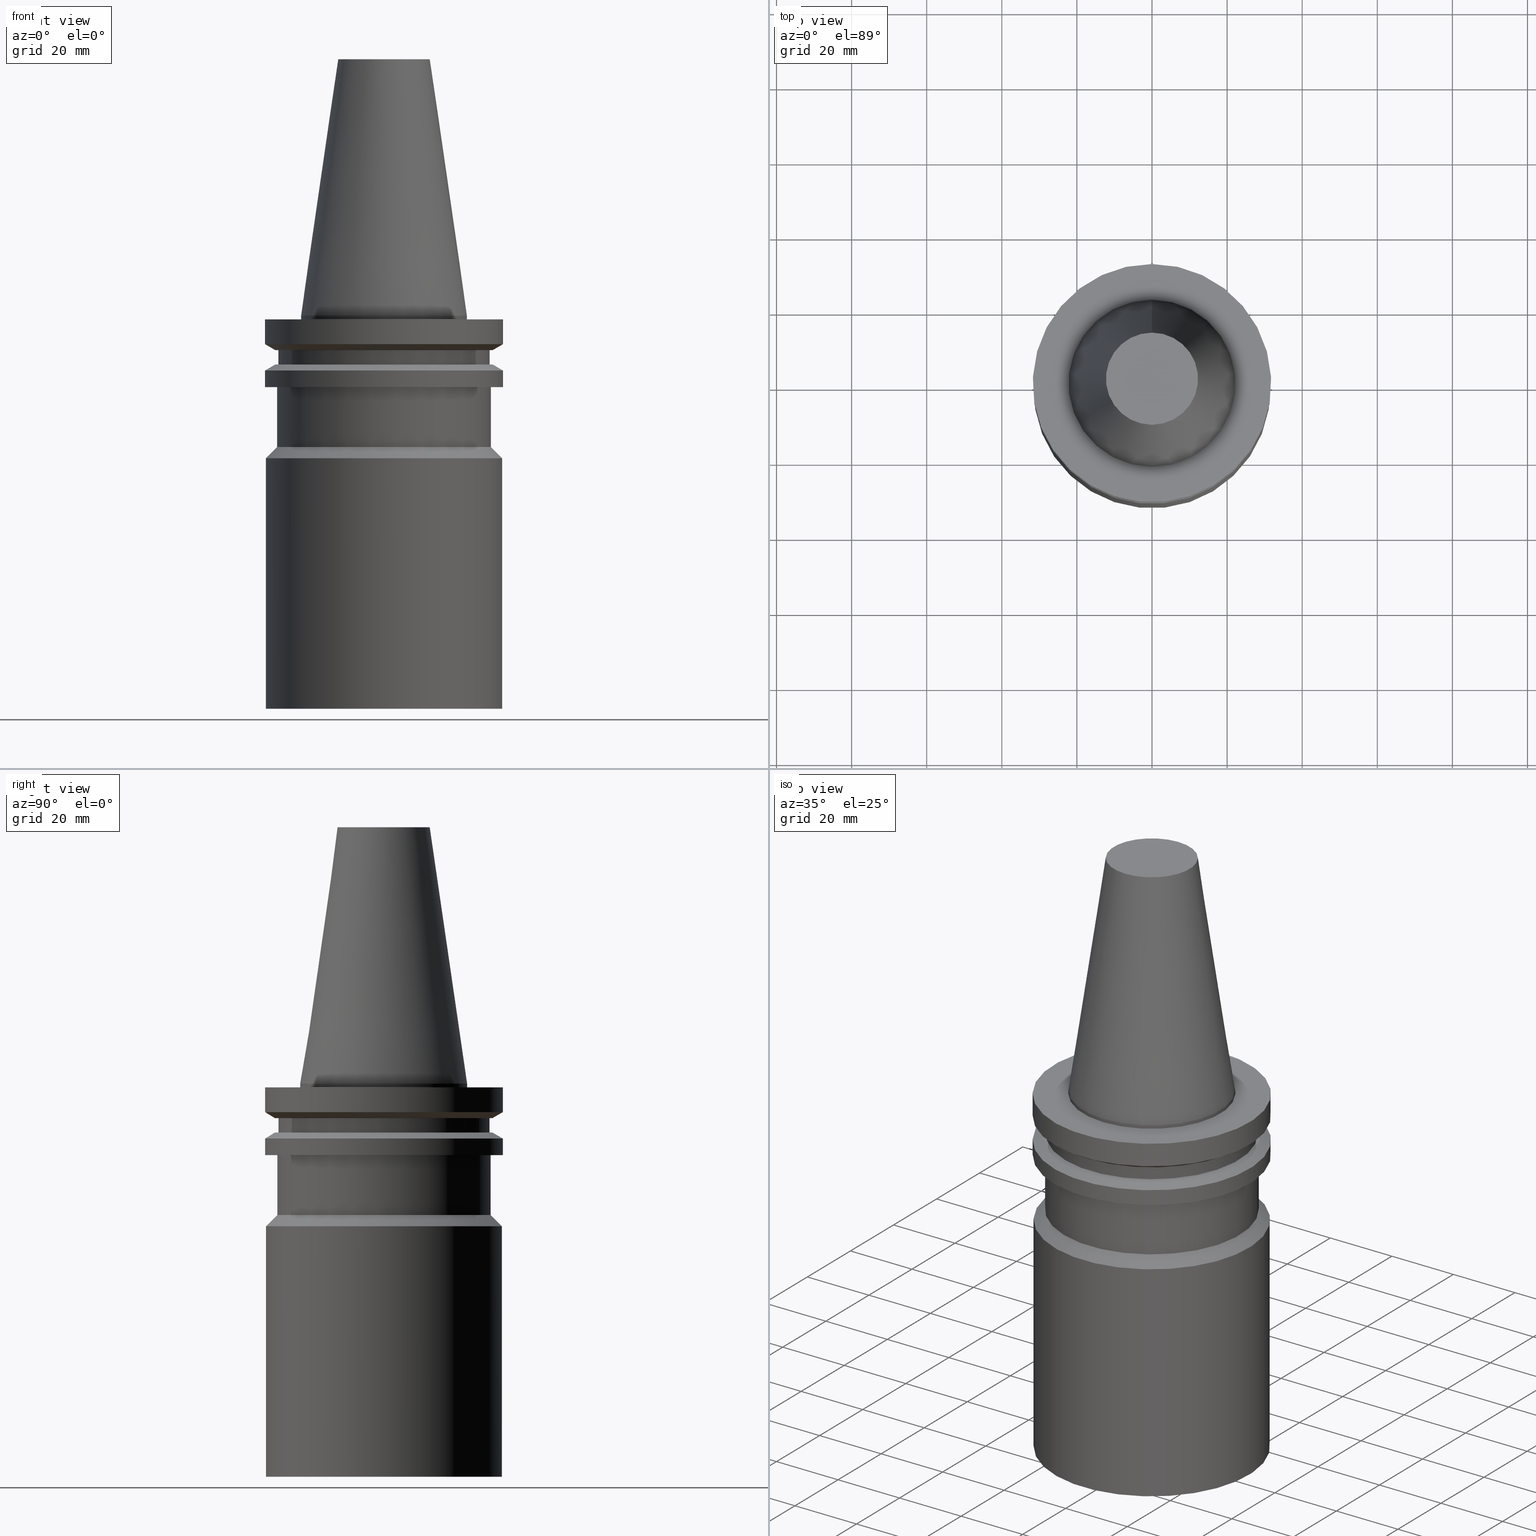
[diagram: canonical four-view strip — front | top / right | iso, engineering-drawing reading convention]
A machine part, canonical four-view strip (front | top / right | iso — engineering-drawing reading convention). The complete STEP part file that produces these views, byte-faithful:
ISO-10303-21;
HEADER;
FILE_DESCRIPTION((''),'1');
FILE_NAME('V:/01_Dxf_Field-HP\X2\FF71FF6FFF8CFF9F5916\X0\2013/BIGKAISER\X2\FF76FF80FF9BFF78FF9E63B28F095206\X0\_BKUS_201803/BCV_Y-F/BCV40Y-F63-4.125.stp','2018-03-13T05:58:49',(''),(''),'Spatial Interop R21 SP3','Kubotek KeyCreator 2011 V10.0.2 (22737)',' ');
FILE_SCHEMA(('automotive_design'));
ENDSEC;
DATA;
#1=MECHANICAL_DESIGN_GEOMETRIC_PRESENTATION_REPRESENTATION(' ',(#10,#11,#12,#13,#14,#15,#16,#17,#18,#19,#20,#21,#22,#23,#24,#25,#26,#27,#28,#29,#30,#31,#32,#33,#34,#35,#36,#37,#38,#39,#40,#41),#6);
#2=PRODUCT_DEFINITION_CONTEXT('',#42,'design');
#3=APPLICATION_PROTOCOL_DEFINITION('INTERNATIONAL STANDARD','automotive_design',1994,#42);
#4=PRODUCT_CATEGORY_RELATIONSHIP('NONE','NONE',#43,#44);
#5=SHAPE_DEFINITION_REPRESENTATION(#45,#46);
#6= (GEOMETRIC_REPRESENTATION_CONTEXT(3)GLOBAL_UNCERTAINTY_ASSIGNED_CONTEXT((#49))GLOBAL_UNIT_ASSIGNED_CONTEXT((#51,#52,#53))REPRESENTATION_CONTEXT('NONE','WORKSPACE'));
#10=STYLED_ITEM('',(#55),#56);
#11=STYLED_ITEM('',(#57),#58);
#12=STYLED_ITEM('',(#59,#60),#61);
#13=STYLED_ITEM('',(#62),#63);
#14=STYLED_ITEM('',(#64),#65);
#15=STYLED_ITEM('',(#66,#67),#68);
#16=STYLED_ITEM('',(#69),#70);
#17=STYLED_ITEM('',(#71,#72),#73);
#18=STYLED_ITEM('',(#74,#75),#76);
#19=STYLED_ITEM('',(#77),#78);
#20=STYLED_ITEM('',(#79,#80),#81);
#21=STYLED_ITEM('',(#82),#83);
#22=STYLED_ITEM('',(#84,#85),#86);
#23=STYLED_ITEM('',(#87),#88);
#24=STYLED_ITEM('',(#89),#90);
#25=STYLED_ITEM('',(#91,#92),#93);
#26=STYLED_ITEM('',(#94,#95),#96);
#27=STYLED_ITEM('',(#97,#98),#99);
#28=STYLED_ITEM('',(#100,#101),#102);
#29=STYLED_ITEM('',(#103,#104),#105);
#30=STYLED_ITEM('',(#106),#107);
#31=STYLED_ITEM('',(#108,#109),#110);
#32=STYLED_ITEM('',(#111),#112);
#33=STYLED_ITEM('',(#113,#114),#115);
#34=STYLED_ITEM('',(#116,#117),#118);
#35=STYLED_ITEM('',(#119),#120);
#36=STYLED_ITEM('',(#121),#122);
#37=STYLED_ITEM('',(#123),#124);
#38=STYLED_ITEM('',(#125,#126),#127);
#39=STYLED_ITEM('',(#128),#129);
#40=STYLED_ITEM('',(#130,#131),#132);
#41=STYLED_ITEM('',(#133,#134),#135);
#42=APPLICATION_CONTEXT(' ');
#43=PRODUCT_CATEGORY('part','NONE');
#44=PRODUCT_RELATED_PRODUCT_CATEGORY('detail',' ',(#136));
#45=PRODUCT_DEFINITION_SHAPE('NONE','NONE',#137);
#46=ADVANCED_BREP_SHAPE_REPRESENTATION('Unnamed[1]',(#93,#138),#6);
#49=UNCERTAINTY_MEASURE_WITH_UNIT(LENGTH_MEASURE(1.0E-006),#51,'','');
#51= (CONVERSION_BASED_UNIT('MILLIMETRE',#141)LENGTH_UNIT()NAMED_UNIT(#144));
#52= (NAMED_UNIT(#146)PLANE_ANGLE_UNIT()SI_UNIT($,.RADIAN.));
#53= (NAMED_UNIT(#146)SOLID_ANGLE_UNIT()SI_UNIT($,.STERADIAN.));
#55=PRESENTATION_STYLE_ASSIGNMENT((#152));
#56=EDGE_CURVE('Unnamed[1]',#153,#153,#154,.T.);
#57=PRESENTATION_STYLE_ASSIGNMENT((#155));
#58=EDGE_CURVE('Unnamed[1]',#156,#156,#157,.T.);
#59=PRESENTATION_STYLE_ASSIGNMENT((#158));
#60=PRESENTATION_STYLE_ASSIGNMENT((#159));
#61=ADVANCED_FACE('Unnamed[1]',(#160,#161),#162,.T.);
#62=PRESENTATION_STYLE_ASSIGNMENT((#163));
#63=EDGE_CURVE('Unnamed[1]',#164,#164,#165,.T.);
#64=PRESENTATION_STYLE_ASSIGNMENT((#166));
#65=EDGE_CURVE('Unnamed[1]',#167,#167,#168,.T.);
#66=PRESENTATION_STYLE_ASSIGNMENT((#169));
#67=PRESENTATION_STYLE_ASSIGNMENT((#170));
#68=ADVANCED_FACE('Unnamed[1]',(#171),#172,.T.);
#69=PRESENTATION_STYLE_ASSIGNMENT((#173));
#70=EDGE_CURVE('Unnamed[1]',#174,#174,#175,.T.);
#71=PRESENTATION_STYLE_ASSIGNMENT((#176));
#72=PRESENTATION_STYLE_ASSIGNMENT((#177));
#73=ADVANCED_FACE('Unnamed[1]',(#178,#179),#180,.T.);
#74=PRESENTATION_STYLE_ASSIGNMENT((#181));
#75=PRESENTATION_STYLE_ASSIGNMENT((#182));
#76=ADVANCED_FACE('Unnamed[1]',(#183,#184),#185,.T.);
#77=PRESENTATION_STYLE_ASSIGNMENT((#186));
#78=EDGE_CURVE('Unnamed[1]',#187,#187,#188,.T.);
#79=PRESENTATION_STYLE_ASSIGNMENT((#189));
#80=PRESENTATION_STYLE_ASSIGNMENT((#190));
#81=ADVANCED_FACE('Unnamed[1]',(#191,#192),#193,.T.);
#82=PRESENTATION_STYLE_ASSIGNMENT((#194));
#83=EDGE_CURVE('Unnamed[1]',#195,#195,#196,.T.);
#84=PRESENTATION_STYLE_ASSIGNMENT((#197));
#85=PRESENTATION_STYLE_ASSIGNMENT((#198));
#86=ADVANCED_FACE('Unnamed[1]',(#199,#200),#201,.T.);
#87=PRESENTATION_STYLE_ASSIGNMENT((#202));
#88=EDGE_CURVE('Unnamed[1]',#203,#203,#204,.T.);
#89=PRESENTATION_STYLE_ASSIGNMENT((#205));
#90=EDGE_CURVE('Unnamed[1]',#206,#206,#207,.T.);
#91=PRESENTATION_STYLE_ASSIGNMENT((#208));
#92=PRESENTATION_STYLE_ASSIGNMENT((#209));
#93=MANIFOLD_SOLID_BREP('Unnamed[1]',#210);
#94=PRESENTATION_STYLE_ASSIGNMENT((#211));
#95=PRESENTATION_STYLE_ASSIGNMENT((#212));
#96=ADVANCED_FACE('Unnamed[1]',(#213,#214),#215,.T.);
#97=PRESENTATION_STYLE_ASSIGNMENT((#216));
#98=PRESENTATION_STYLE_ASSIGNMENT((#217));
#99=ADVANCED_FACE('Unnamed[1]',(#218,#219),#220,.T.);
#100=PRESENTATION_STYLE_ASSIGNMENT((#221));
#101=PRESENTATION_STYLE_ASSIGNMENT((#222));
#102=ADVANCED_FACE('Unnamed[1]',(#223,#224),#225,.T.);
#103=PRESENTATION_STYLE_ASSIGNMENT((#226));
#104=PRESENTATION_STYLE_ASSIGNMENT((#227));
#105=ADVANCED_FACE('Unnamed[1]',(#228,#229),#230,.T.);
#106=PRESENTATION_STYLE_ASSIGNMENT((#231));
#107=EDGE_CURVE('Unnamed[1]',#232,#232,#233,.T.);
#108=PRESENTATION_STYLE_ASSIGNMENT((#234));
#109=PRESENTATION_STYLE_ASSIGNMENT((#235));
#110=ADVANCED_FACE('Unnamed[1]',(#236,#237),#238,.T.);
#111=PRESENTATION_STYLE_ASSIGNMENT((#239));
#112=EDGE_CURVE('Unnamed[1]',#240,#240,#241,.T.);
#113=PRESENTATION_STYLE_ASSIGNMENT((#242));
#114=PRESENTATION_STYLE_ASSIGNMENT((#243));
#115=ADVANCED_FACE('Unnamed[1]',(#244),#245,.T.);
#116=PRESENTATION_STYLE_ASSIGNMENT((#246));
#117=PRESENTATION_STYLE_ASSIGNMENT((#247));
#118=ADVANCED_FACE('Unnamed[1]',(#248,#249),#250,.T.);
#119=PRESENTATION_STYLE_ASSIGNMENT((#251));
#120=EDGE_CURVE('Unnamed[1]',#252,#252,#253,.T.);
#121=PRESENTATION_STYLE_ASSIGNMENT((#254));
#122=EDGE_CURVE('Unnamed[1]',#255,#255,#256,.T.);
#123=PRESENTATION_STYLE_ASSIGNMENT((#257));
#124=EDGE_CURVE('Unnamed[1]',#258,#258,#259,.T.);
#125=PRESENTATION_STYLE_ASSIGNMENT((#260));
#126=PRESENTATION_STYLE_ASSIGNMENT((#261));
#127=ADVANCED_FACE('Unnamed[1]',(#262,#263),#264,.T.);
#128=PRESENTATION_STYLE_ASSIGNMENT((#265));
#129=EDGE_CURVE('Unnamed[1]',#266,#266,#267,.T.);
#130=PRESENTATION_STYLE_ASSIGNMENT((#268));
#131=PRESENTATION_STYLE_ASSIGNMENT((#269));
#132=ADVANCED_FACE('Unnamed[1]',(#270,#271),#272,.T.);
#133=PRESENTATION_STYLE_ASSIGNMENT((#273));
#134=PRESENTATION_STYLE_ASSIGNMENT((#274));
#135=ADVANCED_FACE('Unnamed[1]',(#275,#276),#277,.T.);
#136=PRODUCT('Unnamed[1]','Unnamed[1]','PART-Unnamed[1]-DESC',(#278));
#137=PRODUCT_DEFINITION('NONE','NONE',#279,#2);
#138=AXIS2_PLACEMENT_3D('',#280,#281,#282);
#141=LENGTH_MEASURE_WITH_UNIT(LENGTH_MEASURE(1.0),#283);
#144=DIMENSIONAL_EXPONENTS(1.0,0.0,0.0,0.0,0.0,0.0,0.0);
#146=DIMENSIONAL_EXPONENTS(0.0,0.0,0.0,0.0,0.0,0.0,0.0);
#152=CURVE_STYLE('',#284,POSITIVE_LENGTH_MEASURE(1000.0),#285);
#153=VERTEX_POINT('',#286);
#154=CIRCLE('',#287,31.4999999999999);
#155=CURVE_STYLE('',#288,POSITIVE_LENGTH_MEASURE(1000.0),#289);
#156=VERTEX_POINT('',#290);
#157=CIRCLE('',#291,31.5000000000001);
#158=SURFACE_STYLE_USAGE(.BOTH.,#292);
#159=CURVE_STYLE('',#293,POSITIVE_LENGTH_MEASURE(1000.0),#294);
#160=FACE_BOUND('',#295,.T.);
#161=FACE_BOUND('',#296,.T.);
#162=CYLINDRICAL_SURFACE('',#297,31.75);
#163=CURVE_STYLE('',#298,POSITIVE_LENGTH_MEASURE(1000.0),#299);
#164=VERTEX_POINT('',#300);
#165=CIRCLE('',#301,12.2718750014768);
#166=CURVE_STYLE('',#302,POSITIVE_LENGTH_MEASURE(1000.0),#303);
#167=VERTEX_POINT('',#304);
#168=CIRCLE('',#305,28.5000000000002);
#169=SURFACE_STYLE_USAGE(.BOTH.,#306);
#170=CURVE_STYLE('',#307,POSITIVE_LENGTH_MEASURE(1000.0),#308);
#171=FACE_OUTER_BOUND('',#309,.T.);
#172=PLANE('',#310);
#173=CURVE_STYLE('',#311,POSITIVE_LENGTH_MEASURE(1000.0),#312);
#174=VERTEX_POINT('',#313);
#175=CIRCLE('',#314,28.18);
#176=SURFACE_STYLE_USAGE(.BOTH.,#315);
#177=CURVE_STYLE('',#316,POSITIVE_LENGTH_MEASURE(1000.0),#317);
#178=FACE_BOUND('',#318,.T.);
#179=FACE_OUTER_BOUND('',#319,.T.);
#180=PLANE('',#320);
#181=SURFACE_STYLE_USAGE(.BOTH.,#321);
#182=CURVE_STYLE('',#322,POSITIVE_LENGTH_MEASURE(1000.0),#323);
#183=FACE_BOUND('',#324,.T.);
#184=FACE_BOUND('',#325,.T.);
#185=CYLINDRICAL_SURFACE('',#326,22.225);
#186=CURVE_STYLE('',#327,POSITIVE_LENGTH_MEASURE(1000.0),#328);
#187=VERTEX_POINT('',#329);
#188=CIRCLE('',#330,28.9680375505324);
#189=SURFACE_STYLE_USAGE(.BOTH.,#331);
#190=CURVE_STYLE('',#332,POSITIVE_LENGTH_MEASURE(1000.0),#333);
#191=FACE_BOUND('',#334,.T.);
#192=FACE_BOUND('',#335,.T.);
#193=CONICAL_SURFACE('',#336,30.3590187752662,1.0471975511966);
#194=CURVE_STYLE('',#337,POSITIVE_LENGTH_MEASURE(1000.0),#338);
#195=VERTEX_POINT('',#339);
#196=CIRCLE('',#340,31.75);
#197=SURFACE_STYLE_USAGE(.BOTH.,#341);
#198=CURVE_STYLE('',#342,POSITIVE_LENGTH_MEASURE(1000.0),#343);
#199=FACE_BOUND('',#344,.T.);
#200=FACE_BOUND('',#345,.T.);
#201=CYLINDRICAL_SURFACE('',#346,28.5000000000003);
#202=CURVE_STYLE('',#347,POSITIVE_LENGTH_MEASURE(1000.0),#348);
#203=VERTEX_POINT('',#349);
#204=CIRCLE('',#350,31.75);
#205=CURVE_STYLE('',#351,POSITIVE_LENGTH_MEASURE(1000.0),#352);
#206=VERTEX_POINT('',#353);
#207=CIRCLE('',#354,22.225);
#208=SURFACE_STYLE_USAGE(.BOTH.,#355);
#209=CURVE_STYLE('',#356,POSITIVE_LENGTH_MEASURE(1000.0),#357);
#210=CLOSED_SHELL('',(#68,#132,#76,#110,#102,#99,#73,#118,#96,#81,#61,#127,#86,#135,#105,#115));
#211=SURFACE_STYLE_USAGE(.BOTH.,#358);
#212=CURVE_STYLE('',#359,POSITIVE_LENGTH_MEASURE(1000.0),#360);
#213=FACE_OUTER_BOUND('',#361,.T.);
#214=FACE_BOUND('',#362,.T.);
#215=PLANE('',#363);
#216=SURFACE_STYLE_USAGE(.BOTH.,#364);
#217=CURVE_STYLE('',#365,POSITIVE_LENGTH_MEASURE(1000.0),#366);
#218=FACE_BOUND('',#367,.T.);
#219=FACE_BOUND('',#368,.T.);
#220=CONICAL_SURFACE('',#369,30.3590187752662,1.0471975511966);
#221=SURFACE_STYLE_USAGE(.BOTH.,#370);
#222=CURVE_STYLE('',#371,POSITIVE_LENGTH_MEASURE(1000.0),#372);
#223=FACE_BOUND('',#373,.T.);
#224=FACE_BOUND('',#374,.T.);
#225=CYLINDRICAL_SURFACE('',#375,31.75);
#226=SURFACE_STYLE_USAGE(.BOTH.,#376);
#227=CURVE_STYLE('',#377,POSITIVE_LENGTH_MEASURE(1000.0),#378);
#228=FACE_BOUND('',#379,.T.);
#229=FACE_BOUND('',#380,.T.);
#230=CYLINDRICAL_SURFACE('',#381,31.5);
#231=CURVE_STYLE('',#382,POSITIVE_LENGTH_MEASURE(1000.0),#383);
#232=VERTEX_POINT('',#384);
#233=CIRCLE('',#385,22.225);
#234=SURFACE_STYLE_USAGE(.BOTH.,#386);
#235=CURVE_STYLE('',#387,POSITIVE_LENGTH_MEASURE(1000.0),#388);
#236=FACE_OUTER_BOUND('',#389,.T.);
#237=FACE_BOUND('',#390,.T.);
#238=PLANE('',#391);
#239=CURVE_STYLE('',#392,POSITIVE_LENGTH_MEASURE(1000.0),#393);
#240=VERTEX_POINT('',#394);
#241=CIRCLE('',#395,31.75);
#242=SURFACE_STYLE_USAGE(.BOTH.,#396);
#243=CURVE_STYLE('',#397,POSITIVE_LENGTH_MEASURE(1000.0),#398);
#244=FACE_OUTER_BOUND('',#399,.T.);
#245=PLANE('',#400);
#246=SURFACE_STYLE_USAGE(.BOTH.,#401);
#247=CURVE_STYLE('',#402,POSITIVE_LENGTH_MEASURE(1000.0),#403);
#248=FACE_BOUND('',#404,.T.);
#249=FACE_BOUND('',#405,.T.);
#250=CYLINDRICAL_SURFACE('',#406,28.18);
#251=CURVE_STYLE('',#407,POSITIVE_LENGTH_MEASURE(1000.0),#408);
#252=VERTEX_POINT('',#409);
#253=CIRCLE('',#410,28.9680375505323);
#254=CURVE_STYLE('',#411,POSITIVE_LENGTH_MEASURE(1000.0),#412);
#255=VERTEX_POINT('',#413);
#256=CIRCLE('',#414,28.18);
#257=CURVE_STYLE('',#415,POSITIVE_LENGTH_MEASURE(1000.0),#416);
#258=VERTEX_POINT('',#417);
#259=CIRCLE('',#418,28.5000000000003);
#260=SURFACE_STYLE_USAGE(.BOTH.,#419);
#261=CURVE_STYLE('',#420,POSITIVE_LENGTH_MEASURE(1000.0),#421);
#262=FACE_BOUND('',#422,.T.);
#263=FACE_OUTER_BOUND('',#423,.T.);
#264=PLANE('',#424);
#265=CURVE_STYLE('',#425,POSITIVE_LENGTH_MEASURE(1000.0),#426);
#266=VERTEX_POINT('',#427);
#267=CIRCLE('',#428,31.75);
#268=SURFACE_STYLE_USAGE(.BOTH.,#429);
#269=CURVE_STYLE('',#430,POSITIVE_LENGTH_MEASURE(1000.0),#431);
#270=FACE_BOUND('',#432,.T.);
#271=FACE_BOUND('',#433,.T.);
#272=CONICAL_SURFACE('',#434,17.2484375007384,0.144812498217751);
#273=SURFACE_STYLE_USAGE(.BOTH.,#435);
#274=CURVE_STYLE('',#436,POSITIVE_LENGTH_MEASURE(1000.0),#437);
#275=FACE_BOUND('',#438,.T.);
#276=FACE_BOUND('',#439,.T.);
#277=CONICAL_SURFACE('',#440,30.0000000000002,0.785398163397459);
#278=PRODUCT_CONTEXT('',#42,'mechanical');
#279=PRODUCT_DEFINITION_FORMATION_WITH_SPECIFIED_SOURCE(' ','NONE',#136,.NOT_KNOWN.);
#280=CARTESIAN_POINT('',(0.0,0.0,0.0));
#281=DIRECTION('',(0.0,0.0,1.0));
#282=DIRECTION('',(1.0,0.0,0.0));
#283= (NAMED_UNIT(#144)LENGTH_UNIT()SI_UNIT(.MILLI.,.METRE.));
#284=DRAUGHTING_PRE_DEFINED_CURVE_FONT('continuous');
#285=COLOUR_RGB('',0.0,1.0,0.0);
#286=CARTESIAN_POINT('',(6.4110259935363E-015,31.4999999999999,-104.699999999999));
#287=AXIS2_PLACEMENT_3D('',#442,#443,#444);
#288=DRAUGHTING_PRE_DEFINED_CURVE_FONT('continuous');
#289=COLOUR_RGB('',0.0,1.0,0.0);
#290=CARTESIAN_POINT('',(2.32682891837998E-015,31.5000000000001,-38.0000000000001));
#291=AXIS2_PLACEMENT_3D('',#445,#446,#447);
#292=SURFACE_SIDE_STYLE('',(#448));
#293=DRAUGHTING_PRE_DEFINED_CURVE_FONT('continuous');
#294=COLOUR_RGB('',0.0,1.0,0.0);
#295=EDGE_LOOP('',(#449));
#296=EDGE_LOOP('',(#450));
#297=AXIS2_PLACEMENT_3D('',#451,#452,#453);
#298=DRAUGHTING_PRE_DEFINED_CURVE_FONT('continuous');
#299=COLOUR_RGB('',0.0,1.0,0.0);
#300=CARTESIAN_POINT('',(-4.17910720209034E-015,12.2718750014768,68.25));
#301=AXIS2_PLACEMENT_3D('',#454,#455,#456);
#302=DRAUGHTING_PRE_DEFINED_CURVE_FONT('continuous');
#303=COLOUR_RGB('',0.0,1.0,0.0);
#304=CARTESIAN_POINT('',(1.16647607618786E-015,28.5000000000002,-19.0500000000001));
#305=AXIS2_PLACEMENT_3D('',#457,#458,#459);
#306=SURFACE_SIDE_STYLE('',(#460));
#307=DRAUGHTING_PRE_DEFINED_CURVE_FONT('continuous');
#308=COLOUR_RGB('',0.0,1.0,0.0);
#309=EDGE_LOOP('',(#461));
#310=AXIS2_PLACEMENT_3D('',#462,#463,#464);
#311=DRAUGHTING_PRE_DEFINED_CURVE_FONT('continuous');
#312=COLOUR_RGB('',0.0,1.0,0.0);
#313=CARTESIAN_POINT('',(5.63337527607784E-016,28.18,-9.20000000000002));
#314=AXIS2_PLACEMENT_3D('',#465,#466,#467);
#315=SURFACE_SIDE_STYLE('',(#468));
#316=DRAUGHTING_PRE_DEFINED_CURVE_FONT('continuous');
#317=COLOUR_RGB('',0.0,1.0,0.0);
#318=EDGE_LOOP('',(#469));
#319=EDGE_LOOP('',(#470));
#320=AXIS2_PLACEMENT_3D('',#471,#472,#473);
#321=SURFACE_SIDE_STYLE('',(#474));
#322=DRAUGHTING_PRE_DEFINED_CURVE_FONT('continuous');
#323=COLOUR_RGB('',0.0,1.0,0.0);
#324=EDGE_LOOP('',(#475));
#325=EDGE_LOOP('',(#476));
#326=AXIS2_PLACEMENT_3D('',#477,#478,#479);
#327=DRAUGHTING_PRE_DEFINED_CURVE_FONT('continuous');
#328=COLOUR_RGB('',0.0,1.0,0.0);
#329=CARTESIAN_POINT('',(7.98469713044073E-016,28.9680375505324,-13.04));
#330=AXIS2_PLACEMENT_3D('',#480,#481,#482);
#331=SURFACE_SIDE_STYLE('',(#483));
#332=DRAUGHTING_PRE_DEFINED_CURVE_FONT('continuous');
#333=COLOUR_RGB('',0.0,1.0,0.0);
#334=EDGE_LOOP('',(#484));
#335=EDGE_LOOP('',(#485));
#336=AXIS2_PLACEMENT_3D('',#486,#487,#488);
#337=DRAUGHTING_PRE_DEFINED_CURVE_FONT('continuous');
#338=COLOUR_RGB('',0.0,1.0,0.0);
#339=CARTESIAN_POINT('',(6.12323399573673E-017,31.75,-0.999999999999996));
#340=AXIS2_PLACEMENT_3D('',#489,#490,#491);
#341=SURFACE_SIDE_STYLE('',(#492));
#342=DRAUGHTING_PRE_DEFINED_CURVE_FONT('continuous');
#343=COLOUR_RGB('',0.0,1.0,0.0);
#344=EDGE_LOOP('',(#493));
#345=EDGE_LOOP('',(#494));
#346=AXIS2_PLACEMENT_3D('',#495,#496,#497);
#347=DRAUGHTING_PRE_DEFINED_CURVE_FONT('continuous');
#348=COLOUR_RGB('',0.0,1.0,0.0);
#349=CARTESIAN_POINT('',(1.16647607618786E-015,31.75,-19.05));
#350=AXIS2_PLACEMENT_3D('',#498,#499,#500);
#351=DRAUGHTING_PRE_DEFINED_CURVE_FONT('continuous');
#352=COLOUR_RGB('',0.0,1.0,0.0);
#353=CARTESIAN_POINT('',(6.12323399573674E-017,22.225,-0.999999999999997));
#354=AXIS2_PLACEMENT_3D('',#501,#502,#503);
#355=SURFACE_SIDE_STYLE('',(#504));
#356=DRAUGHTING_PRE_DEFINED_CURVE_FONT('continuous');
#357=COLOUR_RGB('',0.0,1.0,0.0);
#358=SURFACE_SIDE_STYLE('',(#505));
#359=DRAUGHTING_PRE_DEFINED_CURVE_FONT('continuous');
#360=COLOUR_RGB('',0.0,1.0,0.0);
#361=EDGE_LOOP('',(#506));
#362=EDGE_LOOP('',(#507));
#363=AXIS2_PLACEMENT_3D('',#508,#509,#510);
#364=SURFACE_SIDE_STYLE('',(#511));
#365=DRAUGHTING_PRE_DEFINED_CURVE_FONT('continuous');
#366=COLOUR_RGB('',0.0,1.0,0.0);
#367=EDGE_LOOP('',(#512));
#368=EDGE_LOOP('',(#513));
#369=AXIS2_PLACEMENT_3D('',#514,#515,#516);
#370=SURFACE_SIDE_STYLE('',(#517));
#371=DRAUGHTING_PRE_DEFINED_CURVE_FONT('continuous');
#372=COLOUR_RGB('',0.0,1.0,0.0);
#373=EDGE_LOOP('',(#518));
#374=EDGE_LOOP('',(#519));
#375=AXIS2_PLACEMENT_3D('',#520,#521,#522);
#376=SURFACE_SIDE_STYLE('',(#523));
#377=DRAUGHTING_PRE_DEFINED_CURVE_FONT('continuous');
#378=COLOUR_RGB('',0.0,1.0,0.0);
#379=EDGE_LOOP('',(#524));
#380=EDGE_LOOP('',(#525));
#381=AXIS2_PLACEMENT_3D('',#526,#527,#528);
#382=DRAUGHTING_PRE_DEFINED_CURVE_FONT('continuous');
#383=COLOUR_RGB('',0.0,1.0,0.0);
#384=CARTESIAN_POINT('',(-2.7394427528964E-031,22.225,2.72177751110499E-015));
#385=AXIS2_PLACEMENT_3D('',#529,#530,#531);
#386=SURFACE_SIDE_STYLE('',(#532));
#387=DRAUGHTING_PRE_DEFINED_CURVE_FONT('continuous');
#388=COLOUR_RGB('',0.0,1.0,0.0);
#389=EDGE_LOOP('',(#533));
#390=EDGE_LOOP('',(#534));
#391=AXIS2_PLACEMENT_3D('',#535,#536,#537);
#392=DRAUGHTING_PRE_DEFINED_CURVE_FONT('continuous');
#393=COLOUR_RGB('',0.0,1.0,0.0);
#394=CARTESIAN_POINT('',(8.96819062676333E-016,31.75,-14.6461667690755));
#395=AXIS2_PLACEMENT_3D('',#538,#539,#540);
#396=SURFACE_SIDE_STYLE('',(#541));
#397=DRAUGHTING_PRE_DEFINED_CURVE_FONT('continuous');
#398=COLOUR_RGB('',0.0,1.0,0.0);
#399=EDGE_LOOP('',(#542));
#400=AXIS2_PLACEMENT_3D('',#543,#544,#545);
#401=SURFACE_SIDE_STYLE('',(#546));
#402=DRAUGHTING_PRE_DEFINED_CURVE_FONT('continuous');
#403=COLOUR_RGB('',0.0,1.0,0.0);
#404=EDGE_LOOP('',(#547));
#405=EDGE_LOOP('',(#548));
#406=AXIS2_PLACEMENT_3D('',#549,#550,#551);
#407=DRAUGHTING_PRE_DEFINED_CURVE_FONT('continuous');
#408=COLOUR_RGB('',0.0,1.0,0.0);
#409=CARTESIAN_POINT('',(5.63337527607784E-016,28.9680375505323,-9.20000000000002));
#410=AXIS2_PLACEMENT_3D('',#552,#553,#554);
#411=DRAUGHTING_PRE_DEFINED_CURVE_FONT('continuous');
#412=COLOUR_RGB('',0.0,1.0,0.0);
#413=CARTESIAN_POINT('',(7.98469713044073E-016,28.18,-13.04));
#414=AXIS2_PLACEMENT_3D('',#555,#556,#557);
#415=DRAUGHTING_PRE_DEFINED_CURVE_FONT('continuous');
#416=COLOUR_RGB('',0.0,1.0,0.0);
#417=CARTESIAN_POINT('',(2.14313189850789E-015,28.5000000000003,-35.0000000000003));
#418=AXIS2_PLACEMENT_3D('',#558,#559,#560);
#419=SURFACE_SIDE_STYLE('',(#561));
#420=DRAUGHTING_PRE_DEFINED_CURVE_FONT('continuous');
#421=COLOUR_RGB('',0.0,1.0,0.0);
#422=EDGE_LOOP('',(#562));
#423=EDGE_LOOP('',(#563));
#424=AXIS2_PLACEMENT_3D('',#564,#565,#566);
#425=DRAUGHTING_PRE_DEFINED_CURVE_FONT('continuous');
#426=COLOUR_RGB('',0.0,1.0,0.0);
#427=CARTESIAN_POINT('',(4.64988177975518E-016,31.75,-7.59383323092439));
#428=AXIS2_PLACEMENT_3D('',#567,#568,#569);
#429=SURFACE_SIDE_STYLE('',(#570));
#430=DRAUGHTING_PRE_DEFINED_CURVE_FONT('continuous');
#431=COLOUR_RGB('',0.0,1.0,0.0);
#432=EDGE_LOOP('',(#571));
#433=EDGE_LOOP('',(#572));
#434=AXIS2_PLACEMENT_3D('',#573,#574,#575);
#435=SURFACE_SIDE_STYLE('',(#576));
#436=DRAUGHTING_PRE_DEFINED_CURVE_FONT('continuous');
#437=COLOUR_RGB('',0.0,1.0,0.0);
#438=EDGE_LOOP('',(#577));
#439=EDGE_LOOP('',(#578));
#440=AXIS2_PLACEMENT_3D('',#579,#580,#581);
#442=CARTESIAN_POINT('',(6.4110259935363E-015,-2.97759586601671E-014,-104.699999999998));
#443=DIRECTION('',(6.12323399573676E-017,-1.22421842920773E-016,-1.0));
#444=DIRECTION('',(2.66902317316447E-033,1.0,-1.22421842920773E-016));
#445=CARTESIAN_POINT('',(2.32682891837998E-015,-2.16104217373504E-014,-38.0000000000001));
#446=DIRECTION('',(6.12323399573677E-017,-1.22421842920772E-016,-1.0));
#447=DIRECTION('',(2.6690231731616E-033,1.0,-1.22421842920772E-016));
#448=SURFACE_STYLE_FILL_AREA(#582);
#449=ORIENTED_EDGE('',*,*,#88,.F.);
#450=ORIENTED_EDGE('',*,*,#112,.T.);
#451=CARTESIAN_POINT('',(1.03164756943209E-015,-1.90209651239786E-014,-16.8480833845378));
#452=DIRECTION('',(6.12323399573677E-017,-1.22421842920806E-016,-1.0));
#453=DIRECTION('',(2.66902317316385E-033,1.0,-1.22421842920806E-016));
#454=CARTESIAN_POINT('',(-4.17910720209034E-015,-8.60310092701621E-015,68.25));
#455=DIRECTION('',(6.12323399573677E-017,-1.22421842920813E-016,-1.0));
#456=DIRECTION('',(2.66902317316486E-033,1.0,-1.22421842920813E-016));
#457=CARTESIAN_POINT('',(1.16647607618786E-015,-1.92905278140014E-014,-19.0500000000001));
#458=DIRECTION('',(6.12323399573677E-017,-1.22421842920777E-016,-1.0));
#459=DIRECTION('',(2.66902317316309E-033,1.0,-1.22421842920777E-016));
#460=SURFACE_STYLE_FILL_AREA(#583);
#461=ORIENTED_EDGE('',*,*,#63,.F.);
#462=CARTESIAN_POINT('',(-4.17910720209034E-015,6.13593750073841,68.25));
#463=DIRECTION('',(-6.12323399573677E-017,1.03553723205811E-015,1.0));
#464=DIRECTION('',(-5.8581215101125E-032,-1.0,1.03553723205811E-015));
#465=CARTESIAN_POINT('',(5.63337527607784E-016,-1.80846726612316E-014,-9.20000000000003));
#466=DIRECTION('',(6.12323399573676E-017,-1.2242184292081E-016,-1.0));
#467=DIRECTION('',(2.6690231731669E-033,1.0,-1.2242184292081E-016));
#468=SURFACE_STYLE_FILL_AREA(#584);
#469=ORIENTED_EDGE('',*,*,#70,.F.);
#470=ORIENTED_EDGE('',*,*,#120,.T.);
#471=CARTESIAN_POINT('',(5.63337527607784E-016,28.5740187752661,-9.20000000000002));
#472=DIRECTION('',(6.12323399573677E-017,1.22464679914735E-016,-1.0));
#473=DIRECTION('',(-1.23259516440783E-032,1.0,1.22464679914735E-016));
#474=SURFACE_STYLE_FILL_AREA(#585);
#475=ORIENTED_EDGE('',*,*,#90,.F.);
#476=ORIENTED_EDGE('',*,*,#107,.T.);
#477=CARTESIAN_POINT('',(3.06161699786838E-017,-1.70196026278207E-014,-0.5));
#478=DIRECTION('',(6.12323399573676E-017,-1.22421842920814E-016,-1.0));
#479=DIRECTION('',(2.6690231731699E-033,1.0,-1.22421842920814E-016));
#480=CARTESIAN_POINT('',(7.98469713044074E-016,-1.85547725380474E-014,-13.04));
#481=DIRECTION('',(6.12323399573677E-017,-1.22421842920798E-016,-1.0));
#482=DIRECTION('',(2.66902317316161E-033,1.0,-1.22421842920798E-016));
#483=SURFACE_STYLE_FILL_AREA(#586);
#484=ORIENTED_EDGE('',*,*,#112,.F.);
#485=ORIENTED_EDGE('',*,*,#78,.T.);
#486=CARTESIAN_POINT('',(8.47644387860202E-016,-1.86530874860016E-014,-13.8430833845377));
#487=DIRECTION('',(6.12323399573677E-017,-1.22421842920776E-016,-1.0));
#488=DIRECTION('',(2.66902317316278E-033,1.0,-1.22421842920776E-016));
#489=CARTESIAN_POINT('',(6.12323399573668E-017,-1.70808135492811E-014,-0.999999999999986));
#490=DIRECTION('',(6.12323399573677E-017,-1.22421842920806E-016,-1.0));
#491=DIRECTION('',(2.66902317316385E-033,1.0,-1.22421842920806E-016));
#492=SURFACE_STYLE_FILL_AREA(#587);
#493=ORIENTED_EDGE('',*,*,#124,.F.);
#494=ORIENTED_EDGE('',*,*,#65,.T.);
#495=CARTESIAN_POINT('',(1.65480398734787E-015,-2.02668420112948E-014,-27.0250000000002));
#496=DIRECTION('',(6.12323399573677E-017,-1.22421842920777E-016,-1.0));
#497=DIRECTION('',(2.66902317316309E-033,1.0,-1.22421842920777E-016));
#498=CARTESIAN_POINT('',(1.16647607618785E-015,-1.92905278140014E-014,-19.05));
#499=DIRECTION('',(6.12323399573677E-017,-1.22421842920806E-016,-1.0));
#500=DIRECTION('',(2.66902317316385E-033,1.0,-1.22421842920806E-016));
#501=CARTESIAN_POINT('',(6.12323399573677E-017,-1.70808135492811E-014,-1.0));
#502=DIRECTION('',(6.12323399573676E-017,-1.22421842920814E-016,-1.0));
#503=DIRECTION('',(2.6690231731699E-033,1.0,-1.22421842920814E-016));
#504=SURFACE_STYLE_FILL_AREA(#588);
#505=SURFACE_STYLE_FILL_AREA(#589);
#506=ORIENTED_EDGE('',*,*,#78,.F.);
#507=ORIENTED_EDGE('',*,*,#122,.T.);
#508=CARTESIAN_POINT('',(7.98469713044073E-016,28.5740187752662,-13.04));
#509=DIRECTION('',(-6.12323399573677E-017,-1.22464679914735E-016,1.0));
#510=DIRECTION('',(1.23259516440783E-032,-1.0,-1.22464679914735E-016));
#511=SURFACE_STYLE_FILL_AREA(#590);
#512=ORIENTED_EDGE('',*,*,#120,.F.);
#513=ORIENTED_EDGE('',*,*,#129,.T.);
#514=CARTESIAN_POINT('',(5.14162852791651E-016,-1.79863577132774E-014,-8.3969166154622));
#515=DIRECTION('',(-6.12323399573677E-017,1.22421842920776E-016,1.0));
#516=DIRECTION('',(2.66902317316279E-033,1.0,-1.22421842920776E-016));
#517=SURFACE_STYLE_FILL_AREA(#591);
#518=ORIENTED_EDGE('',*,*,#129,.F.);
#519=ORIENTED_EDGE('',*,*,#83,.T.);
#520=CARTESIAN_POINT('',(2.63110258966442E-016,-1.74844281573022E-014,-4.29691661546218));
#521=DIRECTION('',(6.12323399573677E-017,-1.22421842920806E-016,-1.0));
#522=DIRECTION('',(2.66902317316385E-033,1.0,-1.22421842920806E-016));
#523=SURFACE_STYLE_FILL_AREA(#592);
#524=ORIENTED_EDGE('',*,*,#56,.F.);
#525=ORIENTED_EDGE('',*,*,#58,.T.);
#526=CARTESIAN_POINT('',(4.36892745595814E-015,-2.56931901987588E-014,-71.3499999999993));
#527=DIRECTION('',(6.12323399573677E-017,-1.22421842920773E-016,-1.0));
#528=DIRECTION('',(2.66902317316161E-033,1.0,-1.22421842920773E-016));
#529=CARTESIAN_POINT('',(2.09028316133936E-046,-1.69583917063603E-014,-2.07680401218812E-030));
#530=DIRECTION('',(6.12323399573676E-017,-1.22421842920814E-016,-1.0));
#531=DIRECTION('',(2.6690231731699E-033,1.0,-1.22421842920814E-016));
#532=SURFACE_STYLE_FILL_AREA(#593);
#533=ORIENTED_EDGE('',*,*,#83,.F.);
#534=ORIENTED_EDGE('',*,*,#90,.T.);
#535=CARTESIAN_POINT('',(6.12323399573673E-017,26.9875,-0.999999999999997));
#536=DIRECTION('',(-6.12323399573677E-017,-1.22464679914735E-016,1.0));
#537=DIRECTION('',(1.23259516440783E-032,-1.0,-1.22464679914735E-016));
#538=CARTESIAN_POINT('',(8.96819062676333E-016,-1.87514024339558E-014,-14.6461667690755));
#539=DIRECTION('',(6.12323399573677E-017,-1.22421842920806E-016,-1.0));
#540=DIRECTION('',(2.66902317316385E-033,1.0,-1.22421842920806E-016));
#541=SURFACE_STYLE_FILL_AREA(#594);
#542=ORIENTED_EDGE('',*,*,#56,.T.);
#543=CARTESIAN_POINT('',(6.41102599354302E-015,15.7499999999999,-104.700000000108));
#544=DIRECTION('',(6.12323399573677E-017,6.96118558390428E-012,-1.0));
#545=DIRECTION('',(-4.26254509332684E-028,1.0,6.96118558390428E-012));
#546=SURFACE_STYLE_FILL_AREA(#595);
#547=ORIENTED_EDGE('',*,*,#122,.F.);
#548=ORIENTED_EDGE('',*,*,#70,.T.);
#549=CARTESIAN_POINT('',(6.80903620325929E-016,-1.83197225996395E-014,-11.12));
#550=DIRECTION('',(6.12323399573677E-017,-1.2242184292081E-016,-1.0));
#551=DIRECTION('',(2.6690231731669E-033,1.0,-1.2242184292081E-016));
#552=CARTESIAN_POINT('',(5.63337527607784E-016,-1.80846726612316E-014,-9.20000000000003));
#553=DIRECTION('',(6.12323399573677E-017,-1.22421842920799E-016,-1.0));
#554=DIRECTION('',(2.66902317316472E-033,1.0,-1.22421842920799E-016));
#555=CARTESIAN_POINT('',(7.98469713044074E-016,-1.85547725380474E-014,-13.04));
#556=DIRECTION('',(6.12323399573677E-017,-1.2242184292081E-016,-1.0));
#557=DIRECTION('',(2.6690231731669E-033,1.0,-1.2242184292081E-016));
#558=CARTESIAN_POINT('',(2.14313189850789E-015,-2.12431562085881E-014,-35.0000000000003));
#559=DIRECTION('',(6.12323399573677E-017,-1.22421842920777E-016,-1.0));
#560=DIRECTION('',(2.66902317316308E-033,1.0,-1.22421842920777E-016));
#561=SURFACE_STYLE_FILL_AREA(#596);
#562=ORIENTED_EDGE('',*,*,#65,.F.);
#563=ORIENTED_EDGE('',*,*,#88,.T.);
#564=CARTESIAN_POINT('',(1.16647607618786E-015,30.1250000000001,-19.05));
#565=DIRECTION('',(6.12323399573677E-017,1.21470340543171E-014,-1.0));
#566=DIRECTION('',(-7.48618471418437E-031,1.0,1.21470340543171E-014));
#567=CARTESIAN_POINT('',(4.64988177975517E-016,-1.78880427653232E-014,-7.59383323092437));
#568=DIRECTION('',(6.12323399573677E-017,-1.22421842920806E-016,-1.0));
#569=DIRECTION('',(2.66902317316385E-033,1.0,-1.22421842920806E-016));
#570=SURFACE_STYLE_FILL_AREA(#597);
#571=ORIENTED_EDGE('',*,*,#107,.F.);
#572=ORIENTED_EDGE('',*,*,#63,.T.);
#573=CARTESIAN_POINT('',(-2.08955360104517E-015,-1.27807463166883E-014,34.125));
#574=DIRECTION('',(6.12323399573676E-017,-1.22421842920813E-016,-1.0));
#575=DIRECTION('',(2.66902317316811E-033,1.0,-1.22421842920813E-016));
#576=SURFACE_STYLE_FILL_AREA(#598);
#577=ORIENTED_EDGE('',*,*,#58,.F.);
#578=ORIENTED_EDGE('',*,*,#124,.T.);
#579=CARTESIAN_POINT('',(2.23498040844393E-015,-2.14267889729693E-014,-36.5000000000002));
#580=DIRECTION('',(6.12323399573677E-017,-1.22421842920775E-016,-1.0));
#581=DIRECTION('',(2.66902317316529E-033,1.0,-1.22421842920775E-016));
#582=FILL_AREA_STYLE('',(#599));
#583=FILL_AREA_STYLE('',(#600));
#584=FILL_AREA_STYLE('',(#601));
#585=FILL_AREA_STYLE('',(#602));
#586=FILL_AREA_STYLE('',(#603));
#587=FILL_AREA_STYLE('',(#604));
#588=FILL_AREA_STYLE('',(#605));
#589=FILL_AREA_STYLE('',(#606));
#590=FILL_AREA_STYLE('',(#607));
#591=FILL_AREA_STYLE('',(#608));
#592=FILL_AREA_STYLE('',(#609));
#593=FILL_AREA_STYLE('',(#610));
#594=FILL_AREA_STYLE('',(#611));
#595=FILL_AREA_STYLE('',(#612));
#596=FILL_AREA_STYLE('',(#613));
#597=FILL_AREA_STYLE('',(#614));
#598=FILL_AREA_STYLE('',(#615));
#599=FILL_AREA_STYLE_COLOUR('',#616);
#600=FILL_AREA_STYLE_COLOUR('',#617);
#601=FILL_AREA_STYLE_COLOUR('',#618);
#602=FILL_AREA_STYLE_COLOUR('',#619);
#603=FILL_AREA_STYLE_COLOUR('',#620);
#604=FILL_AREA_STYLE_COLOUR('',#621);
#605=FILL_AREA_STYLE_COLOUR('',#622);
#606=FILL_AREA_STYLE_COLOUR('',#623);
#607=FILL_AREA_STYLE_COLOUR('',#624);
#608=FILL_AREA_STYLE_COLOUR('',#625);
#609=FILL_AREA_STYLE_COLOUR('',#626);
#610=FILL_AREA_STYLE_COLOUR('',#627);
#611=FILL_AREA_STYLE_COLOUR('',#628);
#612=FILL_AREA_STYLE_COLOUR('',#629);
#613=FILL_AREA_STYLE_COLOUR('',#630);
#614=FILL_AREA_STYLE_COLOUR('',#631);
#615=FILL_AREA_STYLE_COLOUR('',#632);
#616=COLOUR_RGB('',0.0,1.0,0.0);
#617=COLOUR_RGB('',0.0,1.0,0.0);
#618=COLOUR_RGB('',0.0,1.0,0.0);
#619=COLOUR_RGB('',0.0,1.0,0.0);
#620=COLOUR_RGB('',0.0,1.0,0.0);
#621=COLOUR_RGB('',0.0,1.0,0.0);
#622=COLOUR_RGB('',0.0,1.0,0.0);
#623=COLOUR_RGB('',0.0,1.0,0.0);
#624=COLOUR_RGB('',0.0,1.0,0.0);
#625=COLOUR_RGB('',0.0,1.0,0.0);
#626=COLOUR_RGB('',0.0,1.0,0.0);
#627=COLOUR_RGB('',0.0,1.0,0.0);
#628=COLOUR_RGB('',0.0,1.0,0.0);
#629=COLOUR_RGB('',0.0,1.0,0.0);
#630=COLOUR_RGB('',0.0,1.0,0.0);
#631=COLOUR_RGB('',0.0,1.0,0.0);
#632=COLOUR_RGB('',0.0,1.0,0.0);
ENDSEC;
END-ISO-10303-21;
